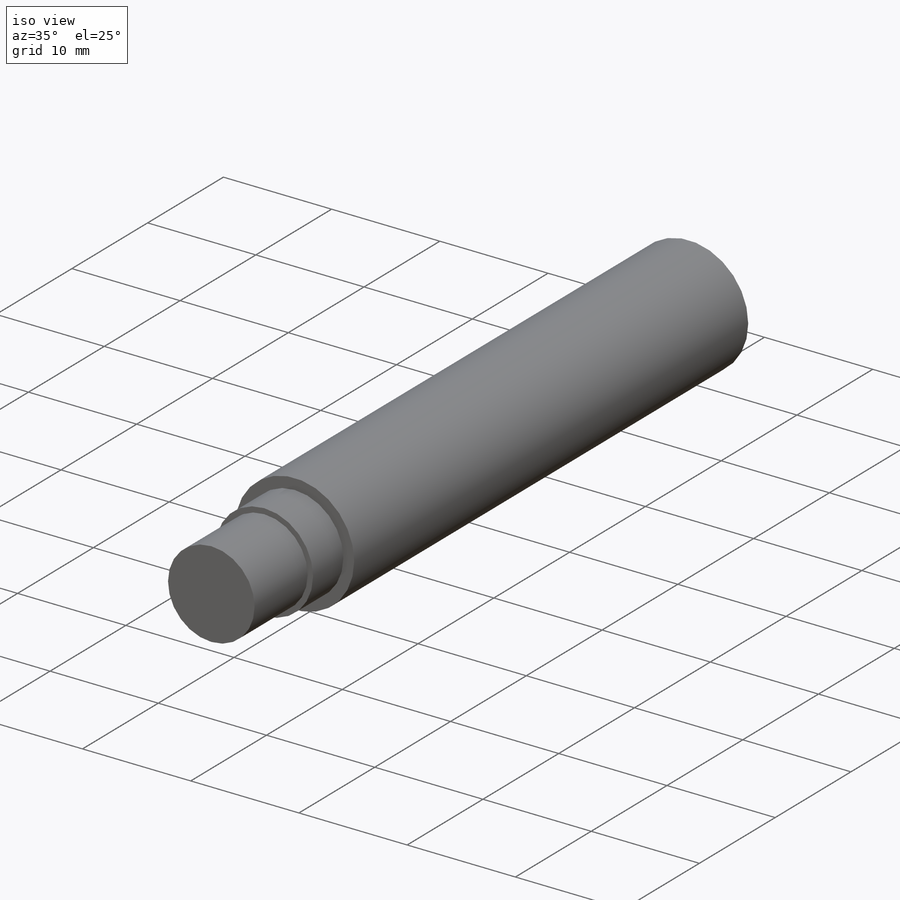
[diagram: iso view]
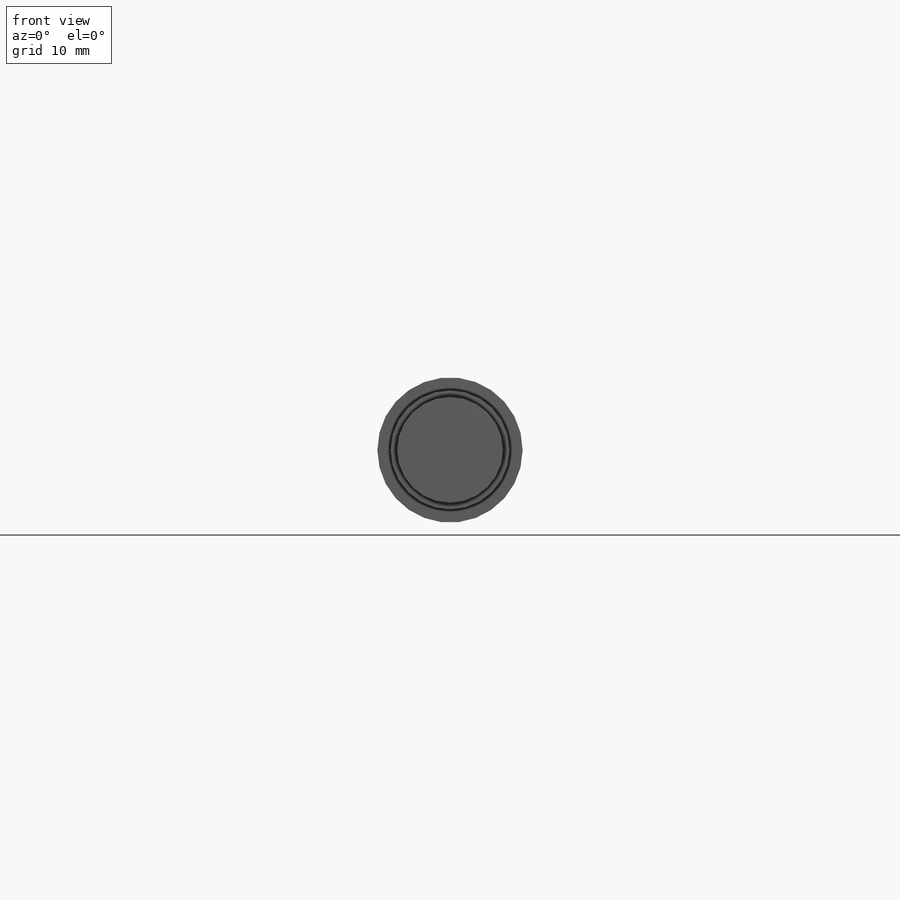
[diagram: front view]
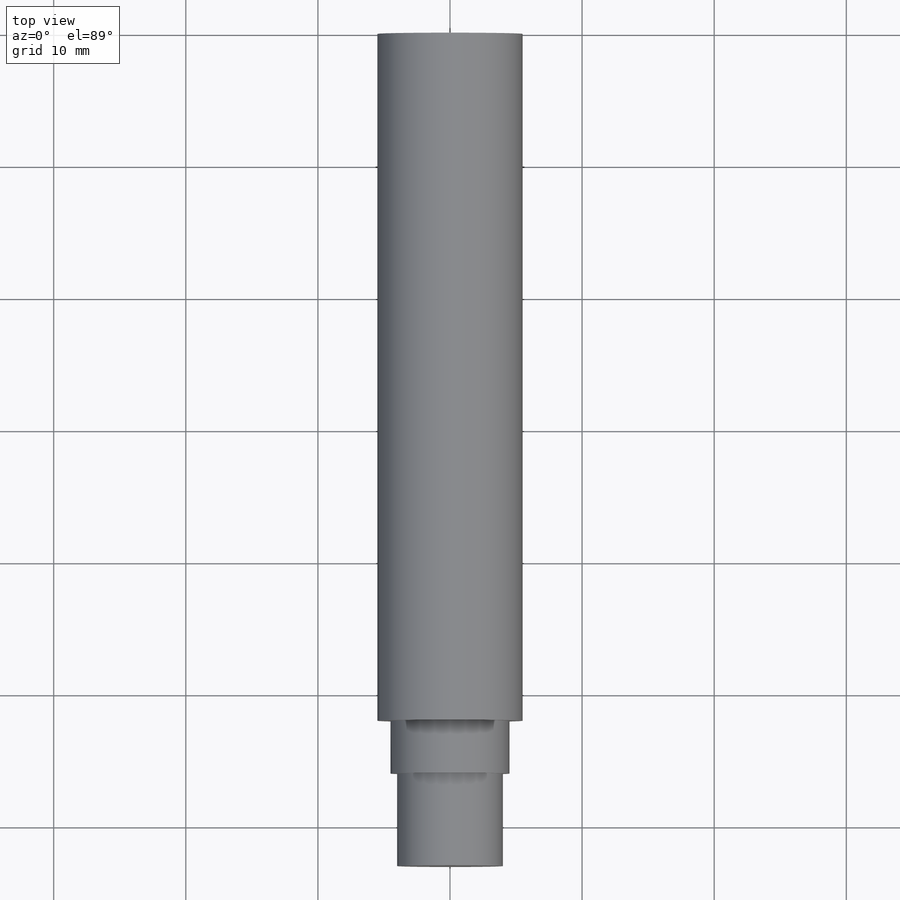
[diagram: top view]
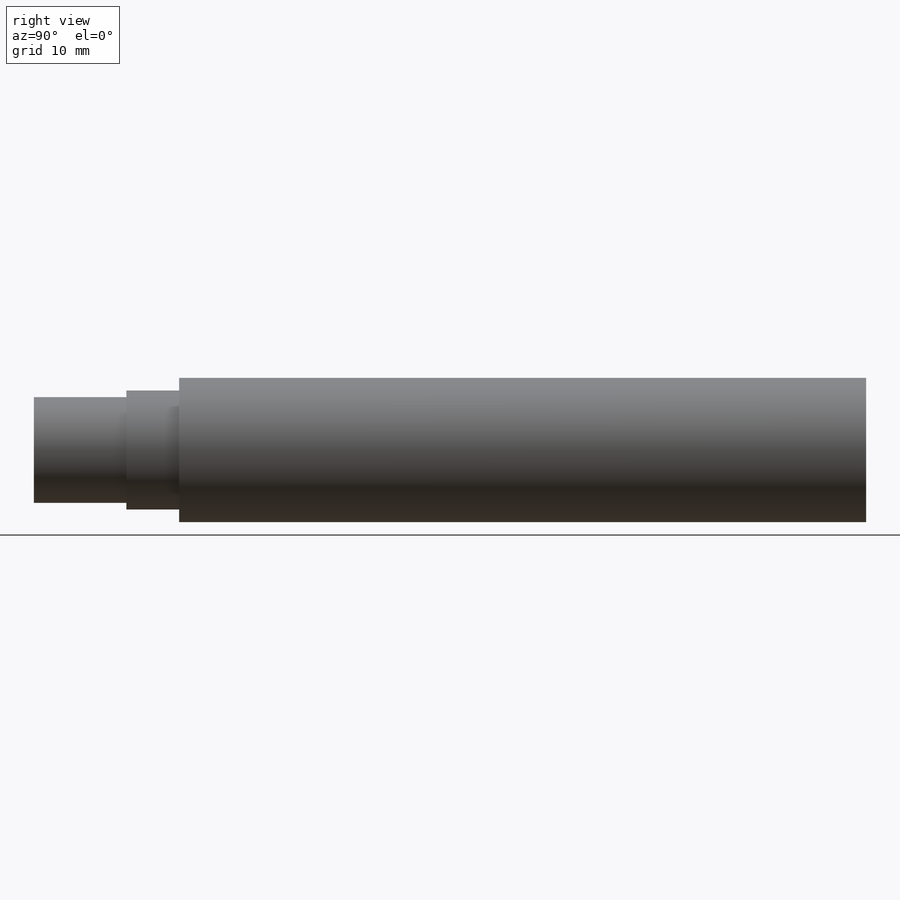
[diagram: right view]
SOLIDWORKS PART (.sldprt)
format: sldprt  version: not decoded by parser v0  size: 222,720 bytes
history: native  units: mm
features: sketch x7, extrude x3, thread x2, hole x2, material x1 (+11 scaffold rows collapsed)
feature tree (26):
  scaffold x11  (default folders/planes/origin — collapsed)
  material  "Material <not specified>"
  sketch  "Sketch1"  dims[D1=11.0mm]
  extrude  "Boss-Extrude1"  Depth=52mm
  sketch  "Sketch2"  dims[D1=9.0mm]
  extrude  "Boss-Extrude2"  Depth=4mm
  sketch  "Sketch3"  dims[D1=8.0mm]
  extrude  "Boss-Extrude3"  [1 undecoded]
  thread  "Cosmetic Thread1"  Diameter=7mm  [1 undecoded]
  hole  "Ø5.0 (5) Diameter Hole1"  Diameter=5mm Depth=45mm
  sketch  "Sketch6"
  sketch  "Sketch5"  dims[hole-wizard template sketch: 47 standard entries collapsed; hole parameters kept: c15.Hole Depth=45.0mm c15.D3=~14.816244mm c15.Drill Angle=118.0deg]
  hole  "M8x1.0 Tapped Hole1"  Diameter=7mm Depth=6mm
  sketch  "Sketch8"
  sketch  "Sketch7"  dims[hole-wizard template sketch: 39 standard entries collapsed; hole parameters kept: c13.Tap Drill Dia.=7.0mm c13.Tap Drill Depth=6.0mm c13.Near C'Sink Dia.=8.05mm c13.D4=~33.297463mm c13.Near C'Sink Angle=90.0deg c14.D5=~14.816244mm c14.Drill Angle=118.0deg]
  thread  "Hole Thread1"  Diameter=6mm  [1 undecoded]
decode coverage: 11 of 14 modeling features carry decoded parameters
note: ~ marks probable driven/reference dimensions
note: 3 parameter values undecoded
note: suppression state not decoded; provenance and decode notes live in map.json
